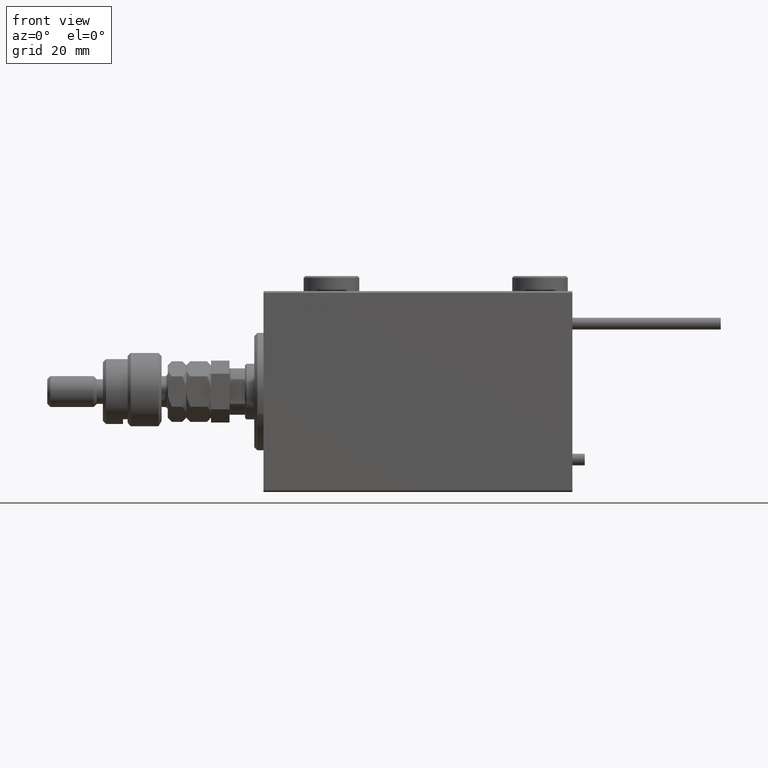
[diagram: clean part render]
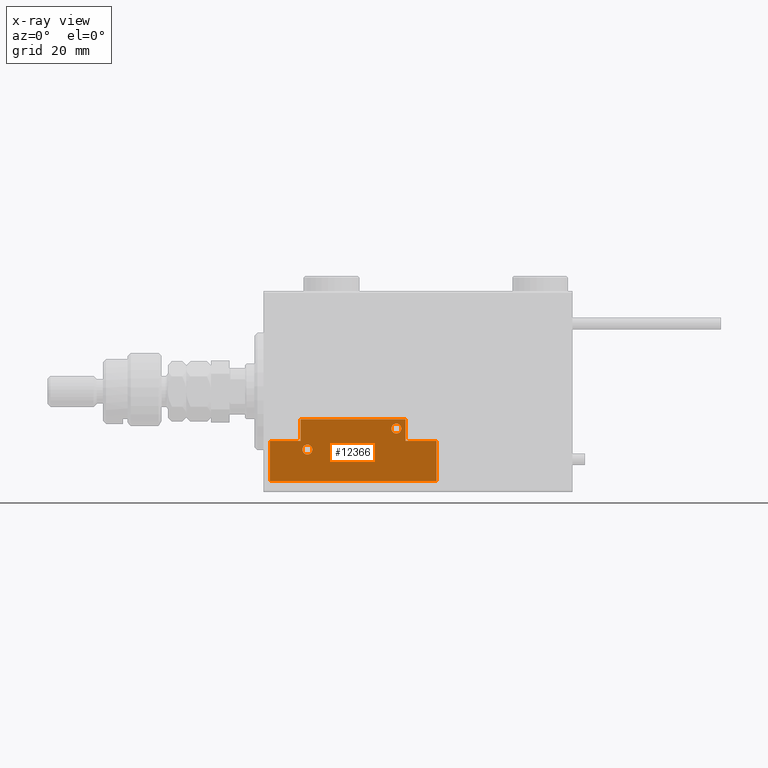
[diagram: x-ray — body ghosted, one internal face saturated and labeled with its STEP entity id]
A machine part, front view, then the same camera in x-ray: the body is ghosted and one INTERNAL B-rep face — a face not visible from any outside direction — is saturated and labeled: STEP entity #12366.
In plain terms, the highlighted planar face has unit normal (-0, 1, -0).
Its self-contained STEP definition (entity closure, byte-faithful):
#15 = CARTESIAN_POINT ( 'NONE',  ( 15.59999999999999964, 3.000000000000002665, 0.000000000000000000 ) ) ;
#821 = CARTESIAN_POINT ( 'NONE',  ( 17.00000000000000000, 7.000000000000009770, 0.000000000000000000 ) ) ;
#1052 = PLANE ( 'NONE',  #31925 ) ;
#1373 = ORIENTED_EDGE ( 'NONE', *, *, #9317, .F. ) ;
#1461 = VERTEX_POINT ( 'NONE', #21707 ) ;
#1829 = CIRCLE ( 'NONE', #34275, 1.600000000000000755 ) ;
#4020 = AXIS2_PLACEMENT_3D ( 'NONE', #19078, #14133, #22936 ) ;
#5370 = LINE ( 'NONE', #25442, #11661 ) ;
#5657 = ORIENTED_EDGE ( 'NONE', *, *, #31586, .F. ) ;
#5833 = EDGE_CURVE ( 'NONE', #14558, #17485, #27038, .T. ) ;
#6432 = CARTESIAN_POINT ( 'NONE',  ( -16.99999999999999289, 3.252606517456513302E-15, 0.000000000000000000 ) ) ;
#6465 = CARTESIAN_POINT ( 'NONE',  ( -16.99999999999999289, 7.000000000000003553, 0.000000000000000000 ) ) ;
#7215 = VERTEX_POINT ( 'NONE', #22406 ) ;
#8648 = DIRECTION ( 'NONE',  ( 1.000000000000000000, 0.000000000000000000, 0.000000000000000000 ) ) ;
#9309 = DIRECTION ( 'NONE',  ( 0.000000000000000000, 1.000000000000000000, 0.000000000000000000 ) ) ;
#9317 = EDGE_CURVE ( 'NONE', #53593, #14558, #5370, .T. ) ;
#9372 = EDGE_LOOP ( 'NONE', ( #10410, #51771 ) ) ;
#9919 = LINE ( 'NONE', #46513, #41908 ) ;
#10261 = CARTESIAN_POINT ( 'NONE',  ( 12.39999999999999858, 3.000000000000002665, 0.000000000000000000 ) ) ;
#10410 = ORIENTED_EDGE ( 'NONE', *, *, #10666, .T. ) ;
#10470 = VERTEX_POINT ( 'NONE', #43223 ) ;
#10666 = EDGE_CURVE ( 'NONE', #21072, #15793, #27538, .T. ) ;
#11574 = ORIENTED_EDGE ( 'NONE', *, *, #5833, .F. ) ;
#11661 = VECTOR ( 'NONE', #41932, 1000.000000000000000 ) ;
#11813 = DIRECTION ( 'NONE',  ( 0.000000000000000000, 0.000000000000000000, 1.000000000000000000 ) ) ;
#11825 = ORIENTED_EDGE ( 'NONE', *, *, #20054, .F. ) ;
#12360 = CARTESIAN_POINT ( 'NONE',  ( -13.19999999999994778, 9.800000000000004263, 0.000000000000000000 ) ) ;
#12366 = ADVANCED_FACE ( 'NONE', ( #21404, #47480, #17269 ), #1052, .F. ) ;
#13476 = CARTESIAN_POINT ( 'NONE',  ( -26.99999999999994671, 7.000000000000005329, 0.000000000000000000 ) ) ;
#13494 = ORIENTED_EDGE ( 'NONE', *, *, #37998, .F. ) ;
#13756 = ORIENTED_EDGE ( 'NONE', *, *, #22167, .F. ) ;
#14133 = DIRECTION ( 'NONE',  ( 0.000000000000000000, 0.000000000000000000, 1.000000000000000000 ) ) ;
#14558 = VERTEX_POINT ( 'NONE', #17291 ) ;
#14795 = VERTEX_POINT ( 'NONE', #36966 ) ;
#15669 = ORIENTED_EDGE ( 'NONE', *, *, #16640, .T. ) ;
#15793 = VERTEX_POINT ( 'NONE', #10261 ) ;
#16217 = DIRECTION ( 'NONE',  ( 1.000000000000000000, 0.000000000000000000, 0.000000000000000000 ) ) ;
#16640 = EDGE_CURVE ( 'NONE', #14795, #34980, #38228, .T. ) ;
#17269 = FACE_OUTER_BOUND ( 'NONE', #37005, .T. ) ;
#17291 = CARTESIAN_POINT ( 'NONE',  ( -16.99999999999999289, 3.252606517456513302E-15, 0.000000000000000000 ) ) ;
#17485 = VERTEX_POINT ( 'NONE', #25793 ) ;
#17538 = DIRECTION ( 'NONE',  ( -0.000000000000000000, 0.000000000000000000, 1.000000000000000000 ) ) ;
#17635 = CARTESIAN_POINT ( 'NONE',  ( 27.00000000000006395, 7.000000000000007994, 0.000000000000000000 ) ) ;
#17774 = CARTESIAN_POINT ( 'NONE',  ( -26.99999999999993605, 20.00000000000002132, 0.000000000000000000 ) ) ;
#18197 = DIRECTION ( 'NONE',  ( 1.000000000000000000, -1.734723475976796001E-16, 0.000000000000000000 ) ) ;
#18366 = EDGE_CURVE ( 'NONE', #15793, #21072, #51489, .T. ) ;
#18981 = AXIS2_PLACEMENT_3D ( 'NONE', #34193, #46571, #8648 ) ;
#19078 = CARTESIAN_POINT ( 'NONE',  ( -14.79999999999994920, 9.800000000000004263, 0.000000000000000000 ) ) ;
#20054 = EDGE_CURVE ( 'NONE', #7215, #10470, #9919, .T. ) ;
#20360 = VERTEX_POINT ( 'NONE', #821 ) ;
#21072 = VERTEX_POINT ( 'NONE', #15 ) ;
#21214 = DIRECTION ( 'NONE',  ( 0.000000000000000000, 0.000000000000000000, 1.000000000000000000 ) ) ;
#21404 = FACE_BOUND ( 'NONE', #46621, .T. ) ;
#21436 = LINE ( 'NONE', #34854, #37473 ) ;
#21707 = CARTESIAN_POINT ( 'NONE',  ( -26.99999999999994671, 7.000000000000005329, 0.000000000000000000 ) ) ;
#22167 = EDGE_CURVE ( 'NONE', #17485, #20360, #21436, .T. ) ;
#22339 = LINE ( 'NONE', #34956, #36275 ) ;
#22359 = EDGE_CURVE ( 'NONE', #10470, #1461, #46358, .T. ) ;
#22406 = CARTESIAN_POINT ( 'NONE',  ( 27.00000000000006395, 20.00000000000001776, 0.000000000000000000 ) ) ;
#22936 = DIRECTION ( 'NONE',  ( 1.000000000000000000, 0.000000000000000000, 0.000000000000000000 ) ) ;
#22964 = VECTOR ( 'NONE', #39956, 1000.000000000000000 ) ;
#25442 = CARTESIAN_POINT ( 'NONE',  ( -16.99999999999999289, 7.000000000000003553, 0.000000000000000000 ) ) ;
#25484 = DIRECTION ( 'NONE',  ( -8.006416042969869188E-16, -1.000000000000000000, 0.000000000000000000 ) ) ;
#25793 = CARTESIAN_POINT ( 'NONE',  ( 16.99999999999999289, 3.252606517456513302E-15, 0.000000000000000000 ) ) ;
#25870 = DIRECTION ( 'NONE',  ( 1.000000000000000000, 0.000000000000000000, 0.000000000000000000 ) ) ;
#27038 = LINE ( 'NONE', #6432, #22964 ) ;
#27538 = CIRCLE ( 'NONE', #29322, 1.600000000000000755 ) ;
#28356 = CARTESIAN_POINT ( 'NONE',  ( 13.99999999999999822, 3.000000000000002665, 0.000000000000000000 ) ) ;
#28761 = VECTOR ( 'NONE', #9309, 1000.000000000000000 ) ;
#29322 = AXIS2_PLACEMENT_3D ( 'NONE', #28356, #21214, #25870 ) ;
#30431 = DIRECTION ( 'NONE',  ( 1.000000000000000000, 0.000000000000000000, 0.000000000000000000 ) ) ;
#31586 = EDGE_CURVE ( 'NONE', #1461, #53593, #50060, .T. ) ;
#31925 = AXIS2_PLACEMENT_3D ( 'NONE', #34296, #17538, #30431 ) ;
#33542 = DIRECTION ( 'NONE',  ( 1.000000000000000000, -1.734723475976815230E-16, 0.000000000000000000 ) ) ;
#34131 = EDGE_CURVE ( 'NONE', #34980, #14795, #1829, .T. ) ;
#34193 = CARTESIAN_POINT ( 'NONE',  ( 13.99999999999999822, 3.000000000000002665, 0.000000000000000000 ) ) ;
#34275 = AXIS2_PLACEMENT_3D ( 'NONE', #49482, #11813, #16217 ) ;
#34296 = CARTESIAN_POINT ( 'NONE',  ( 0.000000000000000000, 0.000000000000000000, 0.000000000000000000 ) ) ;
#34854 = CARTESIAN_POINT ( 'NONE',  ( 16.99999999999999289, 3.252606517456513302E-15, 0.000000000000000000 ) ) ;
#34956 = CARTESIAN_POINT ( 'NONE',  ( 17.00000000000000000, 7.000000000000009770, 0.000000000000000000 ) ) ;
#34980 = VERTEX_POINT ( 'NONE', #12360 ) ;
#36275 = VECTOR ( 'NONE', #18197, 1000.000000000000000 ) ;
#36966 = CARTESIAN_POINT ( 'NONE',  ( -16.39999999999994884, 9.800000000000004263, 0.000000000000000000 ) ) ;
#37005 = EDGE_LOOP ( 'NONE', ( #13494, #13756, #11574, #1373, #5657, #45741, #11825, #52677 ) ) ;
#37473 = VECTOR ( 'NONE', #51635, 1000.000000000000000 ) ;
#37998 = EDGE_CURVE ( 'NONE', #20360, #41691, #22339, .T. ) ;
#38228 = CIRCLE ( 'NONE', #4020, 1.600000000000000755 ) ;
#38722 = VECTOR ( 'NONE', #33542, 1000.000000000000000 ) ;
#39587 = ORIENTED_EDGE ( 'NONE', *, *, #34131, .T. ) ;
#39956 = DIRECTION ( 'NONE',  ( 1.000000000000000000, 0.000000000000000000, 0.000000000000000000 ) ) ;
#41691 = VERTEX_POINT ( 'NONE', #17635 ) ;
#41908 = VECTOR ( 'NONE', #42395, 1000.000000000000000 ) ;
#41932 = DIRECTION ( 'NONE',  ( 0.000000000000000000, -1.000000000000000000, 0.000000000000000000 ) ) ;
#42395 = DIRECTION ( 'NONE',  ( -1.000000000000000000, 6.424901762877062263E-17, 0.000000000000000000 ) ) ;
#43223 = CARTESIAN_POINT ( 'NONE',  ( -26.99999999999993605, 20.00000000000002132, 0.000000000000000000 ) ) ;
#45741 = ORIENTED_EDGE ( 'NONE', *, *, #22359, .F. ) ;
#46358 = LINE ( 'NONE', #17774, #51518 ) ;
#46513 = CARTESIAN_POINT ( 'NONE',  ( 27.00000000000006395, 20.00000000000001776, 0.000000000000000000 ) ) ;
#46571 = DIRECTION ( 'NONE',  ( 0.000000000000000000, 0.000000000000000000, 1.000000000000000000 ) ) ;
#46621 = EDGE_LOOP ( 'NONE', ( #39587, #15669 ) ) ;
#46968 = CARTESIAN_POINT ( 'NONE',  ( 27.00000000000006395, 7.000000000000007994, 0.000000000000000000 ) ) ;
#47480 = FACE_BOUND ( 'NONE', #9372, .T. ) ;
#49482 = CARTESIAN_POINT ( 'NONE',  ( -14.79999999999994920, 9.800000000000004263, 0.000000000000000000 ) ) ;
#50060 = LINE ( 'NONE', #13476, #38722 ) ;
#51118 = LINE ( 'NONE', #46968, #28761 ) ;
#51489 = CIRCLE ( 'NONE', #18981, 1.600000000000000755 ) ;
#51518 = VECTOR ( 'NONE', #25484, 1000.000000000000000 ) ;
#51635 = DIRECTION ( 'NONE',  ( 9.912705577010318647E-16, 1.000000000000000000, 0.000000000000000000 ) ) ;
#51771 = ORIENTED_EDGE ( 'NONE', *, *, #18366, .T. ) ;
#52677 = ORIENTED_EDGE ( 'NONE', *, *, #54116, .F. ) ;
#53593 = VERTEX_POINT ( 'NONE', #6465 ) ;
#54116 = EDGE_CURVE ( 'NONE', #41691, #7215, #51118, .T. ) ;